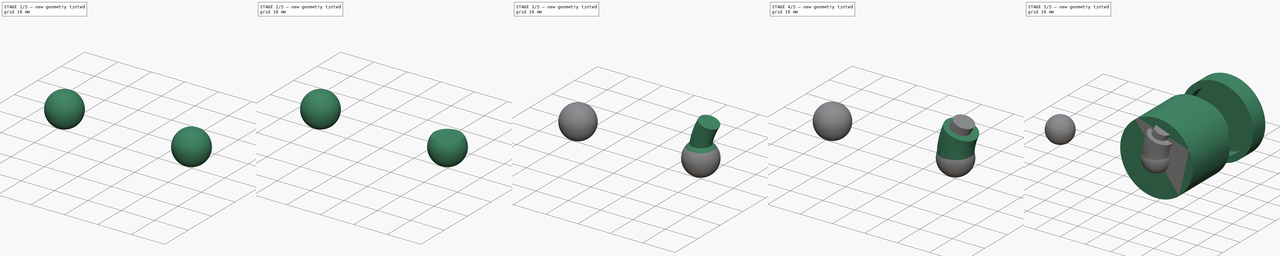
[diagram: build sequence overview — one tinted view per stage of 5, left to right]
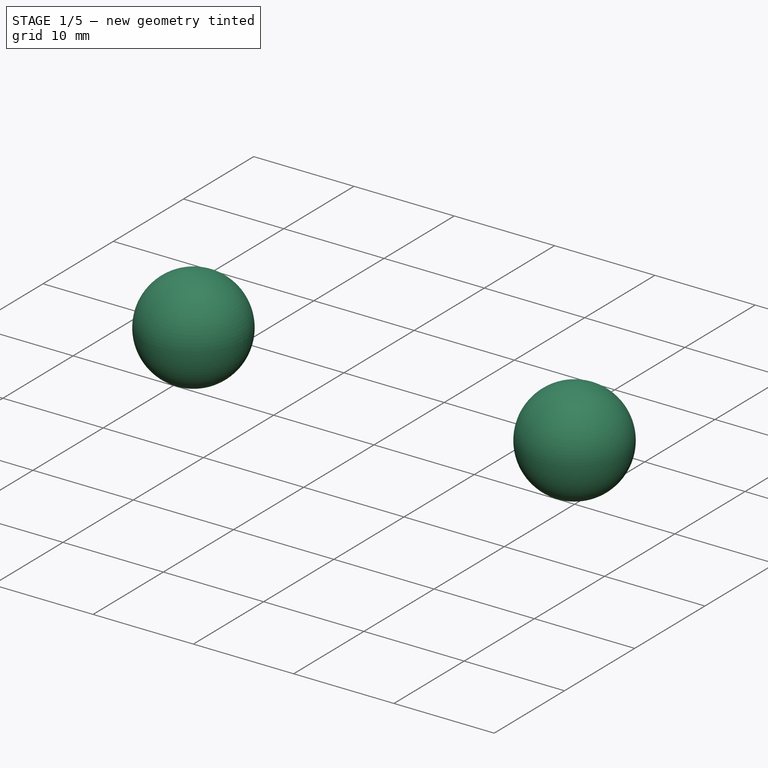
[diagram: stage 1 of 5 — iso view after this stage's code; geometry added in this stage tinted green]
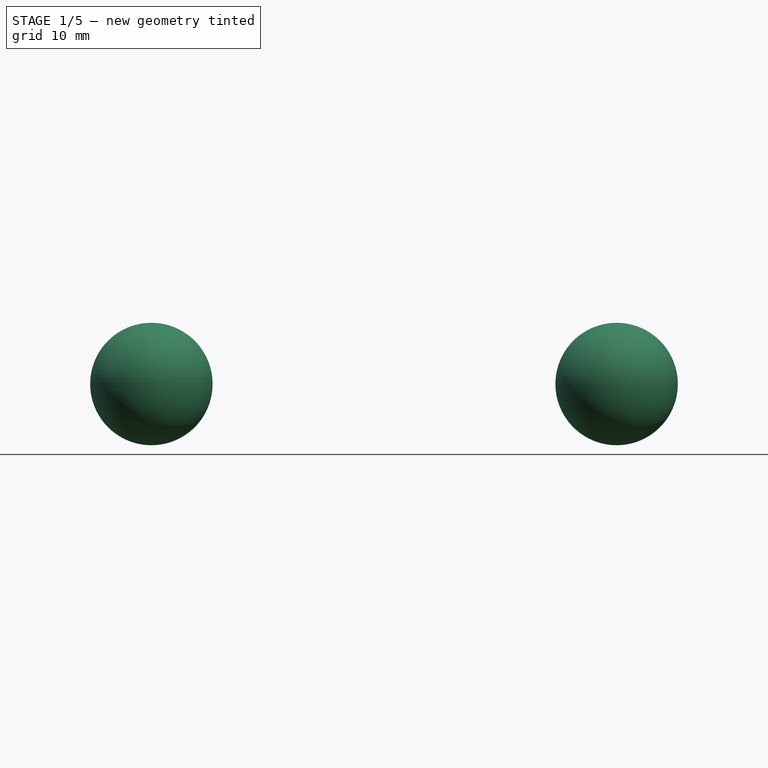
[diagram: stage 1 of 5 — front view after this stage's code; geometry added in this stage tinted green]
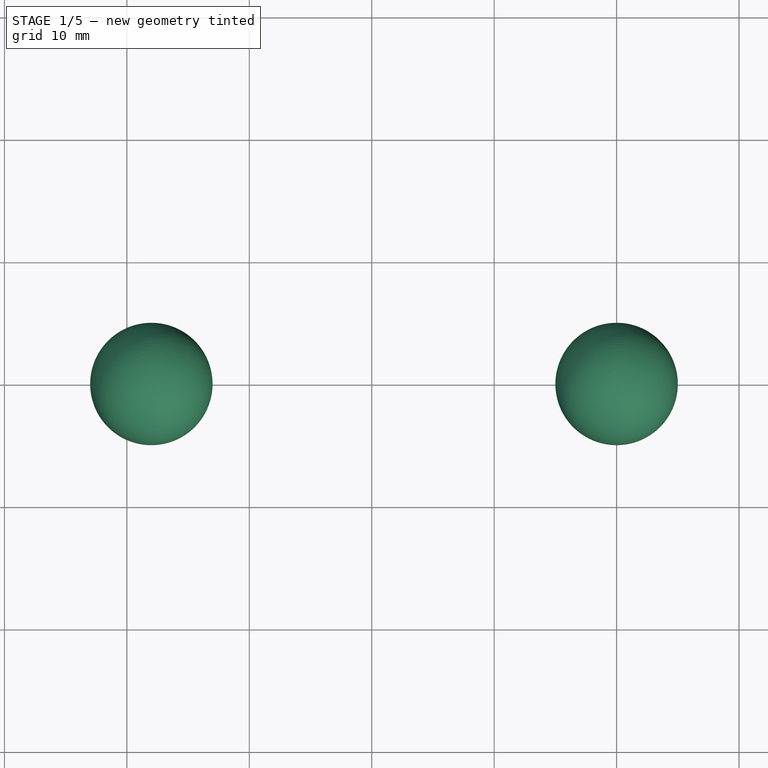
[diagram: stage 1 of 5 — top view after this stage's code; geometry added in this stage tinted green]
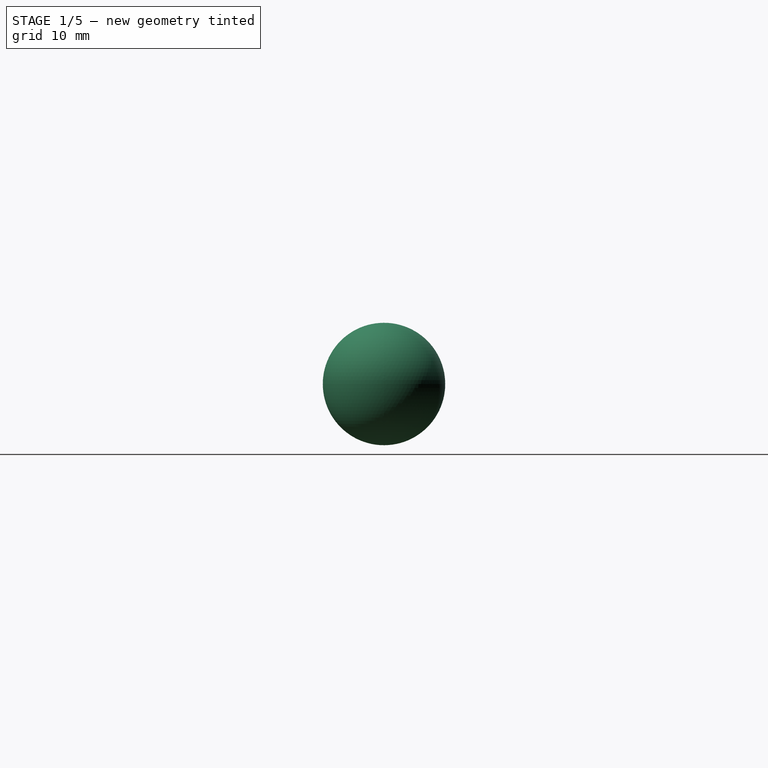
[diagram: stage 1 of 5 — right view after this stage's code; geometry added in this stage tinted green]
FCSTD DOCUMENT  (FreeCAD 0.21RUnknown)
Label: part40-compund_objects
License: All rights reserved
LicenseURL: http://en.wikipedia.org/wiki/All_rights_reserved
objects: Part::FeaturePython×27, Part::Plane×6, Part::Revolution×5, App::DocumentObjectGroup×4, Sketcher::SketchObject×3, Part::Sphere×3, Part::Compound×2, Part::Offset2D×1
note: 47 computed .brp shape members not serialized (recipe doc carries the construction recipe); baked Part::Feature solids carry a one-line shape summary decoded from their .brp

FEATURE [Part::Sphere] Sphere001
  Angle1 = -90
  Angle2 = 90
  Angle3 = 360
  AttacherType = Attacher::AttachEngine3D
  Radius = 5
FEATURE [Part::Plane] Plane
  AttacherType = Attacher::AttachEngine3D
  Length = 20
  Placement = pos=(-9,-9,3) rot=(0,0,1;0rad)
  Width = 20
FEATURE [Part::Plane] Plane001
  AttacherType = Attacher::AttachEngine3D
  Length = 20
  Placement = pos=(-9,-9,-3) rot=(0,0,1;0rad)
  Width = 20
FEATURE [Part::Plane] Plane002
  AttacherType = Attacher::AttachEngine3D
  Length = 20
  Placement = pos=(-9,-9,0) rot=(0,0,1;0rad)
  Width = 20
FEATURE [Part::Compound] Compound
  Links = -> [Plane,Plane001,Plane002]
FEATURE [Part::Plane] Plane003
  AttacherType = Attacher::AttachEngine3D
  Length = 20
  Placement = pos=(-9,-9,3) rot=(0,0,1;0rad)
  Width = 20
FEATURE [Part::Plane] Plane004
  AttacherType = Attacher::AttachEngine3D
  Length = 20
  Placement = pos=(-9,-9,-3) rot=(0,0,1;0rad)
  Width = 20
FEATURE [Part::Plane] Plane005
  AttacherType = Attacher::AttachEngine3D
  Length = 20
  Placement = pos=(-9,-9,0) rot=(0,0,1;0rad)
  Width = 20
FEATURE [Part::Compound] Compound001
  Links = -> [Plane003,Plane004,Plane005]
  Placement = pos=(-39,0,0) rot=(0,0,1;0rad)
FEATURE [Part::Sphere] Sphere002
  Angle1 = -90
  Angle2 = 90
  Angle3 = 360
  AttacherType = Attacher::AttachEngine3D
  Placement = pos=(-38,0,0) rot=(0,0,1;0rad)
  Radius = 5
FEATURE [Part::FeaturePython] Slice  # WARN: FeaturePython — macro-defined, semantics opaque (R4)
  Base = -> Sphere001
  Mode = 1
  Tolerance = 0
  Tools = -> [Compound]
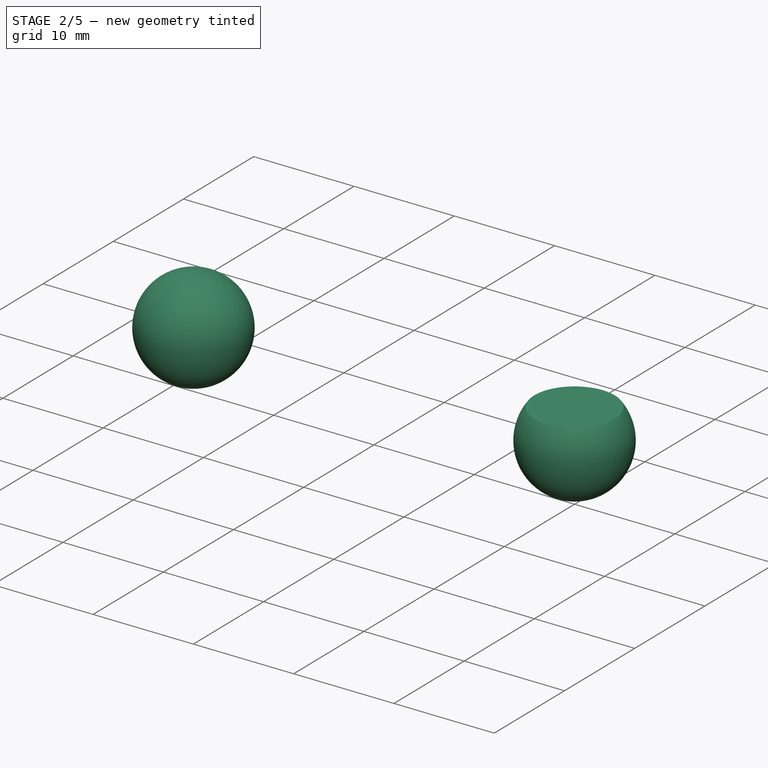
[diagram: stage 2 of 5 — iso view after this stage's code; geometry added in this stage tinted green]
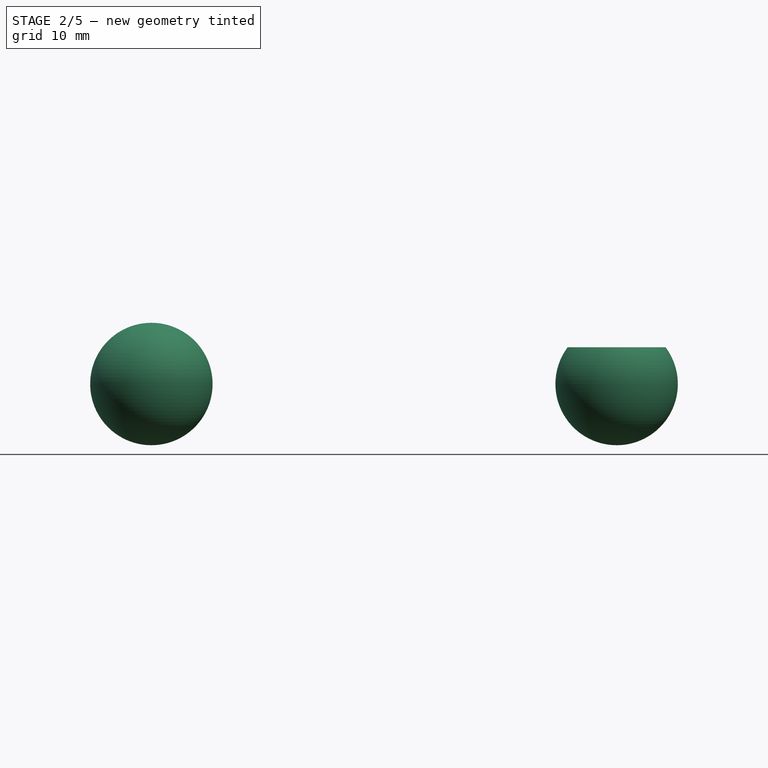
[diagram: stage 2 of 5 — front view after this stage's code; geometry added in this stage tinted green]
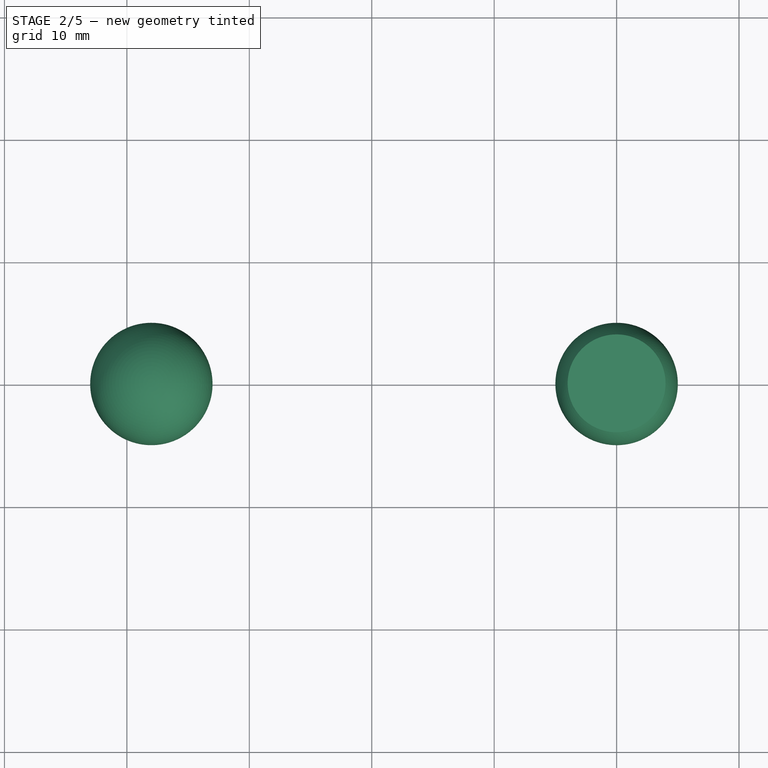
[diagram: stage 2 of 5 — top view after this stage's code; geometry added in this stage tinted green]
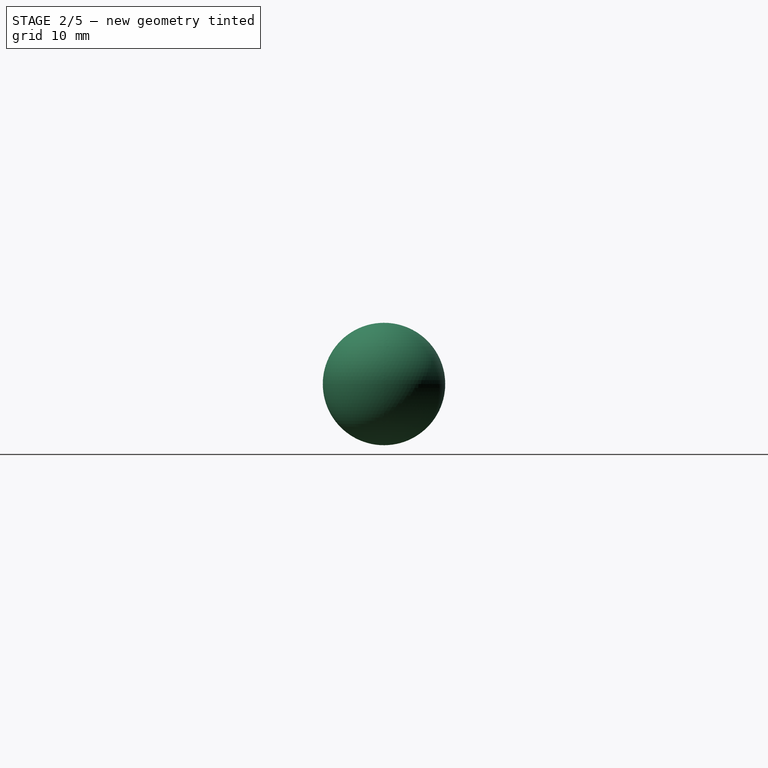
[diagram: stage 2 of 5 — right view after this stage's code; geometry added in this stage tinted green]
FEATURE [Part::FeaturePython] Slice_child1  label="Slice.1"  # WARN: FeaturePython — macro-defined, semantics opaque (R4)
  Base = -> Slice
  FilterType = 1
  Invert = false
  OverrideMaxVal = 0
  WindowFrom = 80
  WindowTo = 100
  items = 1
FEATURE [Part::FeaturePython] Slice_child2  label="Slice.2"  # WARN: FeaturePython — macro-defined, semantics opaque (R4)
  Base = -> Slice
  FilterType = 1
  Invert = false
  OverrideMaxVal = 0
  WindowFrom = 80
  WindowTo = 100
  items = 2
FEATURE [Part::FeaturePython] Slice_child3  label="Slice.3"  # WARN: FeaturePython — macro-defined, semantics opaque (R4)
  Base = -> Slice
  FilterType = 1
  Invert = false
  OverrideMaxVal = 0
  WindowFrom = 80
  WindowTo = 100
  items = 3
FEATURE [App::DocumentObjectGroup] GrExplode_Slice  label="Exploded Slice"
  Group = -> [Slice_child0,Slice_child1,Slice_child2,Slice_child3]
FEATURE [Part::FeaturePython] Slice001  # WARN: FeaturePython — macro-defined, semantics opaque (R4)
  Base = -> Compound001
  Mode = 1
  Tolerance = 0
  Tools = -> [Sphere002]
FEATURE [Part::FeaturePython] Slice001_child0  label="Slice001.0"  # WARN: FeaturePython — macro-defined, semantics opaque (R4)
  Base = -> Slice001
  FilterType = 1
  Invert = false
  OverrideMaxVal = 0
  WindowFrom = 80
  WindowTo = 100
  items = 0
FEATURE [Part::FeaturePython] Slice001_child1  label="Slice001.1"  # WARN: FeaturePython — macro-defined, semantics opaque (R4)
  Base = -> Slice001
  FilterType = 1
  Invert = false
  OverrideMaxVal = 0
  WindowFrom = 80
  WindowTo = 100
  items = 1
FEATURE [Part::FeaturePython] Slice001_child2  label="Slice001.2"  # WARN: FeaturePython — macro-defined, semantics opaque (R4)
  Base = -> Slice001
  FilterType = 1
  Invert = false
  OverrideMaxVal = 0
  WindowFrom = 80
  WindowTo = 100
  items = 2
FEATURE [Part::FeaturePython] Slice001_child3  label="Slice001.3"  # WARN: FeaturePython — macro-defined, semantics opaque (R4)
  Base = -> Slice001
  FilterType = 1
  Invert = false
  OverrideMaxVal = 0
  WindowFrom = 80
  WindowTo = 100
  items = 3
FEATURE [Part::FeaturePython] Slice001_child4  label="Slice001.4"  # WARN: FeaturePython — macro-defined, semantics opaque (R4)
  Base = -> Slice001
  FilterType = 1
  Invert = false
  OverrideMaxVal = 0
  WindowFrom = 80
  WindowTo = 100
  items = 4
FEATURE [Part::FeaturePython] Slice001_child5  label="Slice001.5"  # WARN: FeaturePython — macro-defined, semantics opaque (R4)
  Base = -> Slice001
  FilterType = 1
  Invert = false
  OverrideMaxVal = 0
  WindowFrom = 80
  WindowTo = 100
  items = 5
FEATURE [App::DocumentObjectGroup] GrExplode_Slice001  label="Exploded Slice001"
  Group = -> [Slice001_child0,Slice001_child1,Slice001_child2,Slice001_child3,Slice001_child4,Slice001_child5]
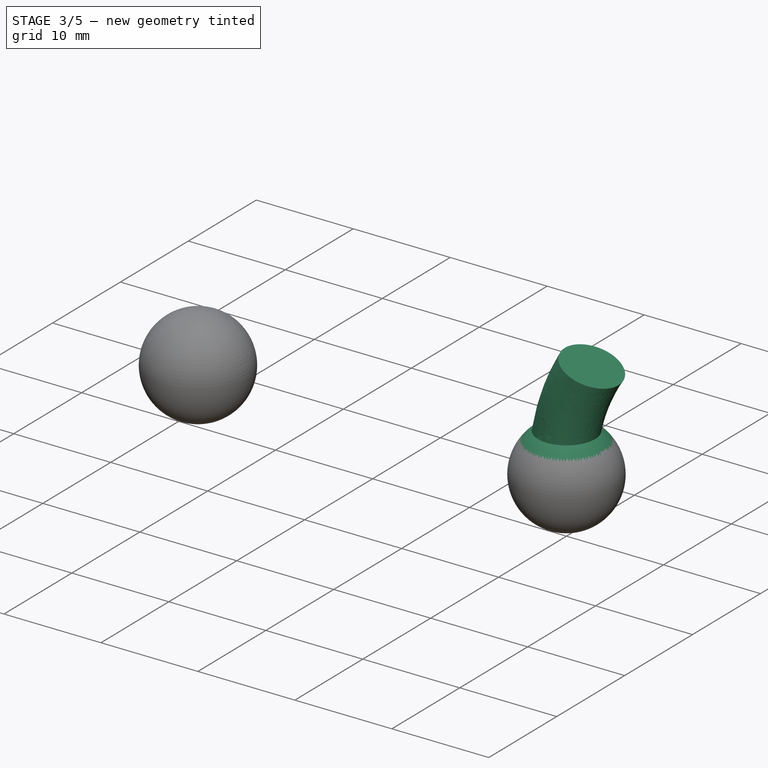
[diagram: stage 3 of 5 — iso view after this stage's code; geometry added in this stage tinted green]
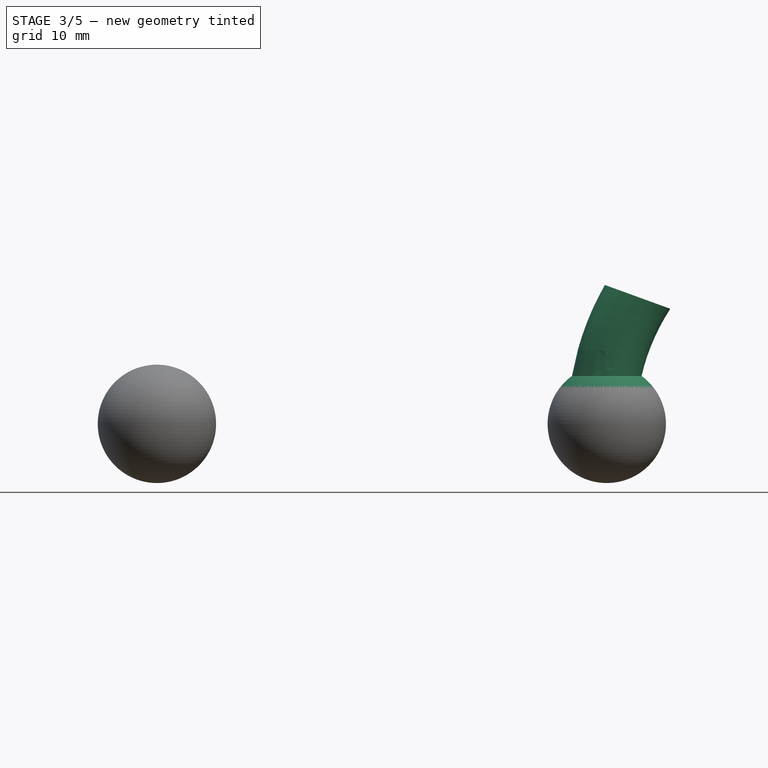
[diagram: stage 3 of 5 — front view after this stage's code; geometry added in this stage tinted green]
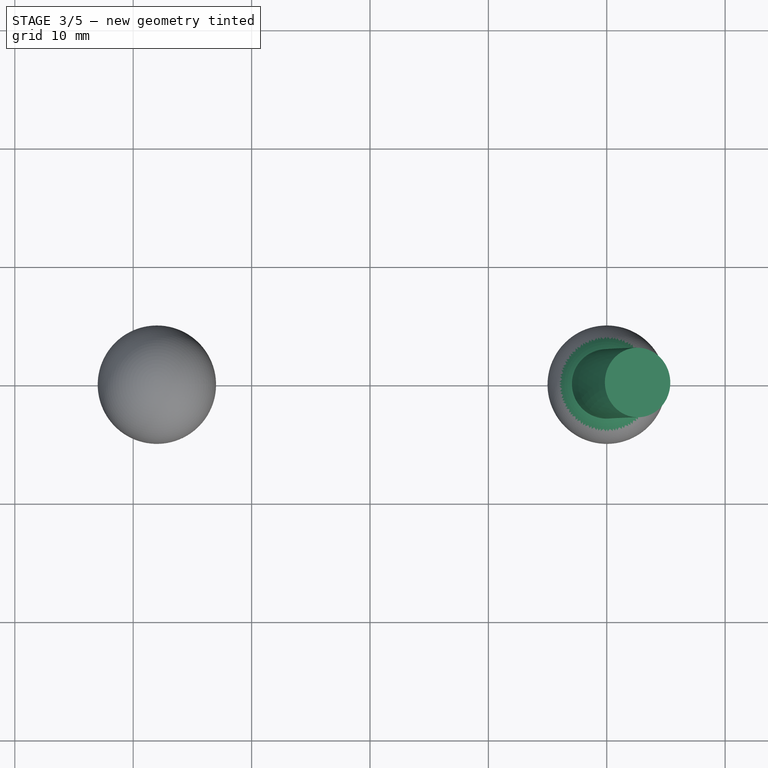
[diagram: stage 3 of 5 — top view after this stage's code; geometry added in this stage tinted green]
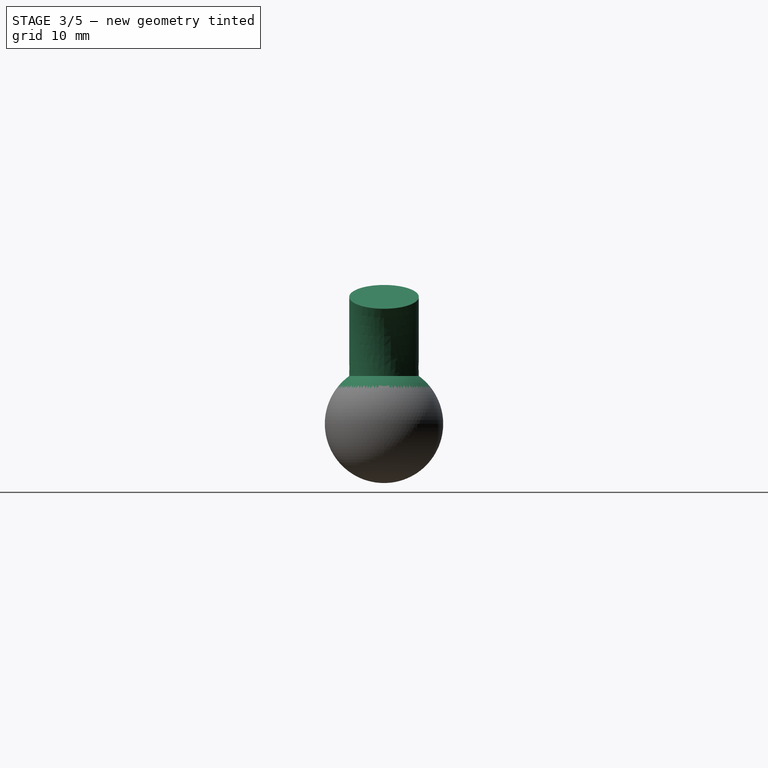
[diagram: stage 3 of 5 — right view after this stage's code; geometry added in this stage tinted green]
FEATURE [App::DocumentObjectGroup] GrExplode_Revolve  label="Exploded Revolve"
  Group = -> [Revolve_child0,Revolve_child1]
FEATURE [Part::Sphere] Sphere
  Angle1 = -90
  Angle2 = 90
  Angle3 = 360
  AttacherType = Attacher::AttachEngine3D
  Radius = 5
FEATURE [Part::Revolution] Revolve004
  Angle = 20
  Axis = (0,1,0)
  AxisLink = -> Sketch002 [Edge1]
  Base = (20.2494,10.6659,0)
  FaceMakerClass = Part::FaceMakerBullseye
  Solid = true
  Source = -> IsoCurve_child10
  Symmetric = false
FEATURE [Part::FeaturePython] Slice_child0  label="Slice.0"  # WARN: FeaturePython — macro-defined, semantics opaque (R4)
  Base = -> Slice
  FilterType = 1
  Invert = false
  OverrideMaxVal = 0
  WindowFrom = 80
  WindowTo = 100
  items = 0
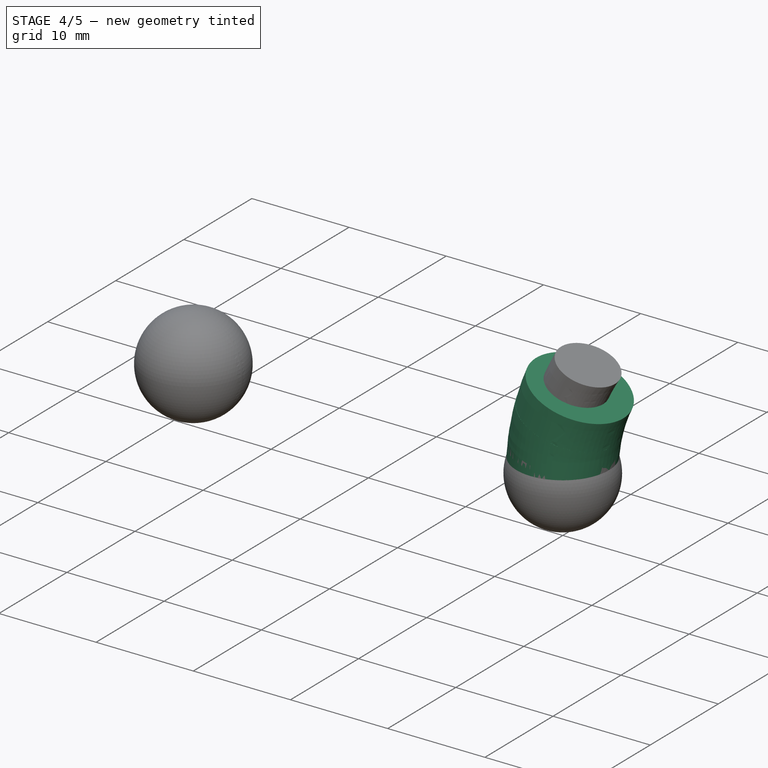
[diagram: stage 4 of 5 — iso view after this stage's code; geometry added in this stage tinted green]
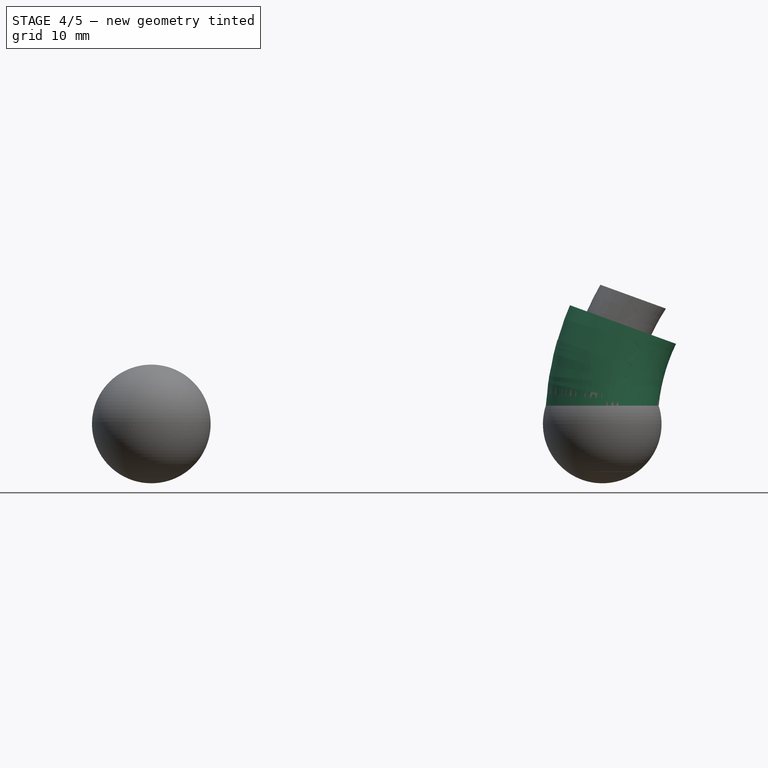
[diagram: stage 4 of 5 — front view after this stage's code; geometry added in this stage tinted green]
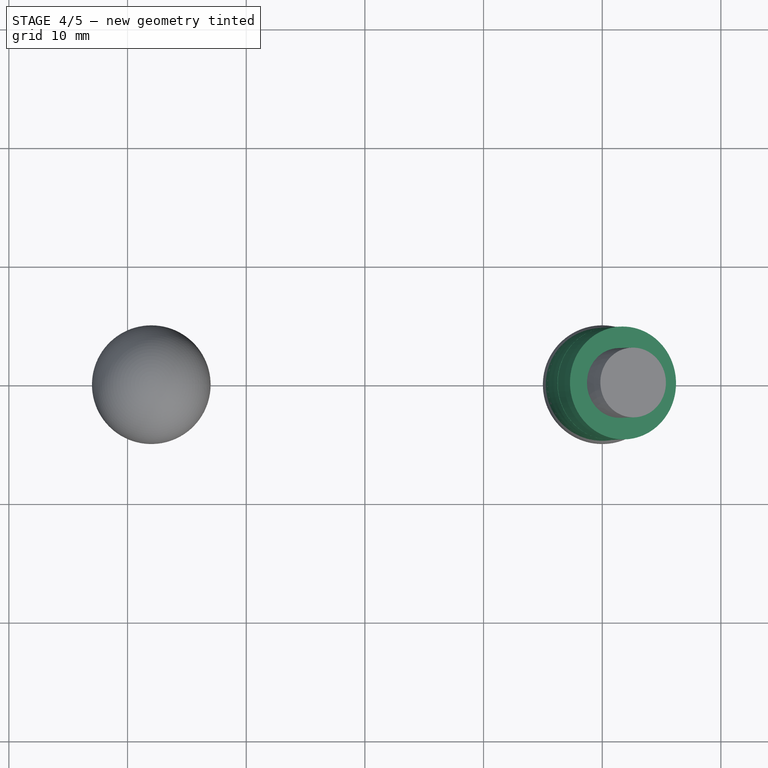
[diagram: stage 4 of 5 — top view after this stage's code; geometry added in this stage tinted green]
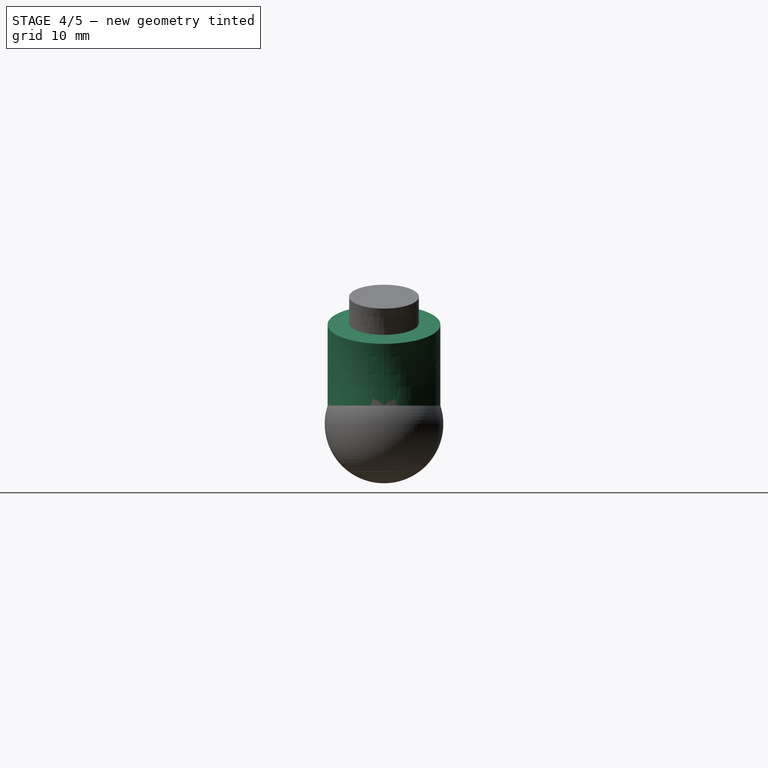
[diagram: stage 4 of 5 — right view after this stage's code; geometry added in this stage tinted green]
FEATURE [Part::FeaturePython] IsoCurve  # WARN: FeaturePython — macro-defined, semantics opaque (R4)
  Face = -> Sphere [Face1]
  Mode = 1
  NumberU = 6
  NumberV = 6
  Orientation = 0
  Parameter = 0
FEATURE [Part::FeaturePython] IsoCurve_child0  label="IsoCurve.0"  # WARN: FeaturePython — macro-defined, semantics opaque (R4)
  Base = -> IsoCurve
  FilterType = 1
  Invert = false
  OverrideMaxVal = 0
  WindowFrom = 80
  WindowTo = 100
  items = 0
FEATURE [Part::FeaturePython] IsoCurve_child1  label="IsoCurve.1"  # WARN: FeaturePython — macro-defined, semantics opaque (R4)
  Base = -> IsoCurve
  FilterType = 1
  Invert = false
  OverrideMaxVal = 0
  WindowFrom = 80
  WindowTo = 100
  items = 1
FEATURE [Part::FeaturePython] IsoCurve_child2  label="IsoCurve.2"  # WARN: FeaturePython — macro-defined, semantics opaque (R4)
  Base = -> IsoCurve
  FilterType = 1
  Invert = false
  OverrideMaxVal = 0
  WindowFrom = 80
  WindowTo = 100
  items = 2
FEATURE [Part::FeaturePython] IsoCurve_child3  label="IsoCurve.3"  # WARN: FeaturePython — macro-defined, semantics opaque (R4)
  Base = -> IsoCurve
  FilterType = 1
  Invert = false
  OverrideMaxVal = 0
  WindowFrom = 80
  WindowTo = 100
  items = 3
FEATURE [Part::FeaturePython] IsoCurve_child4  label="IsoCurve.4"  # WARN: FeaturePython — macro-defined, semantics opaque (R4)
  Base = -> IsoCurve
  FilterType = 1
  Invert = false
  OverrideMaxVal = 0
  WindowFrom = 80
  WindowTo = 100
  items = 4
FEATURE [Part::FeaturePython] IsoCurve_child5  label="IsoCurve.5"  # WARN: FeaturePython — macro-defined, semantics opaque (R4)
  Base = -> IsoCurve
  FilterType = 1
  Invert = false
  OverrideMaxVal = 0
  WindowFrom = 80
  WindowTo = 100
  items = 5
FEATURE [Part::FeaturePython] IsoCurve_child6  label="IsoCurve.6"  # WARN: FeaturePython — macro-defined, semantics opaque (R4)
  Base = -> IsoCurve
  FilterType = 1
  Invert = false
  OverrideMaxVal = 0
  WindowFrom = 80
  WindowTo = 100
  items = 6
FEATURE [Part::FeaturePython] IsoCurve_child7  label="IsoCurve.7"  # WARN: FeaturePython — macro-defined, semantics opaque (R4)
  Base = -> IsoCurve
  FilterType = 1
  Invert = false
  OverrideMaxVal = 0
  WindowFrom = 80
  WindowTo = 100
  items = 7
FEATURE [Part::FeaturePython] IsoCurve_child8  label="IsoCurve.8"  # WARN: FeaturePython — macro-defined, semantics opaque (R4)
  Base = -> IsoCurve
  FilterType = 1
  Invert = false
  OverrideMaxVal = 0
  WindowFrom = 80
  WindowTo = 100
  items = 8
FEATURE [Part::FeaturePython] IsoCurve_child9  label="IsoCurve.9"  # WARN: FeaturePython — macro-defined, semantics opaque (R4)
  Base = -> IsoCurve
  FilterType = 1
  Invert = false
  OverrideMaxVal = 0
  WindowFrom = 80
  WindowTo = 100
  items = 9
FEATURE [Part::FeaturePython] IsoCurve_child10  label="IsoCurve.10"  # WARN: FeaturePython — macro-defined, semantics opaque (R4)
  Base = -> IsoCurve
  FilterType = 1
  Invert = false
  OverrideMaxVal = 0
  WindowFrom = 80
  WindowTo = 100
  items = 10
FEATURE [Part::FeaturePython] IsoCurve_child11  label="IsoCurve.11"  # WARN: FeaturePython — macro-defined, semantics opaque (R4)
  Base = -> IsoCurve
  FilterType = 1
  Invert = false
  OverrideMaxVal = 0
  WindowFrom = 80
  WindowTo = 100
  items = 11
FEATURE [App::DocumentObjectGroup] GrExplode_IsoCurve  label="Exploded IsoCurve"
  Group = -> [IsoCurve_child0,IsoCurve_child1,IsoCurve_child2,IsoCurve_child3,IsoCurve_child4,IsoCurve_child5,IsoCurve_child6,IsoCurve_child7,IsoCurve_child8,IsoCurve_child9,IsoCurve_child10,IsoCurve_child11]
FEATURE [Sketcher::SketchObject] Sketch002
  FullyConstrained = false
  sketch-geometry (1):
    g0: LineSegment StartX=20.2494 StartY=-11.3015 StartZ=0 EndX=20.2494 EndY=10.6659 EndZ=0
  constraints (1):
    c: Vertical(g0)
FEATURE [Part::Revolution] Revolve001
  Angle = 20
  Axis = (0,1,0)
  AxisLink = -> Sketch002 [Edge1]
  Base = (20.2494,10.6659,0)
  FaceMakerClass = Part::FaceMakerBullseye
  Solid = true
  Source = -> IsoCurve_child7
  Symmetric = false
FEATURE [Part::Revolution] Revolve002
  Angle = 20
  Axis = (0,1,0)
  AxisLink = -> Sketch002 [Edge1]
  Base = (20.2494,10.6659,0)
  FaceMakerClass = Part::FaceMakerBullseye
  Solid = true
  Source = -> IsoCurve_child8
  Symmetric = false
FEATURE [Part::Revolution] Revolve003
  Angle = 20
  Axis = (0,1,0)
  AxisLink = -> Sketch002 [Edge1]
  Base = (20.2494,10.6659,0)
  FaceMakerClass = Part::FaceMakerBullseye
  Solid = true
  Source = -> IsoCurve_child9
  Symmetric = false
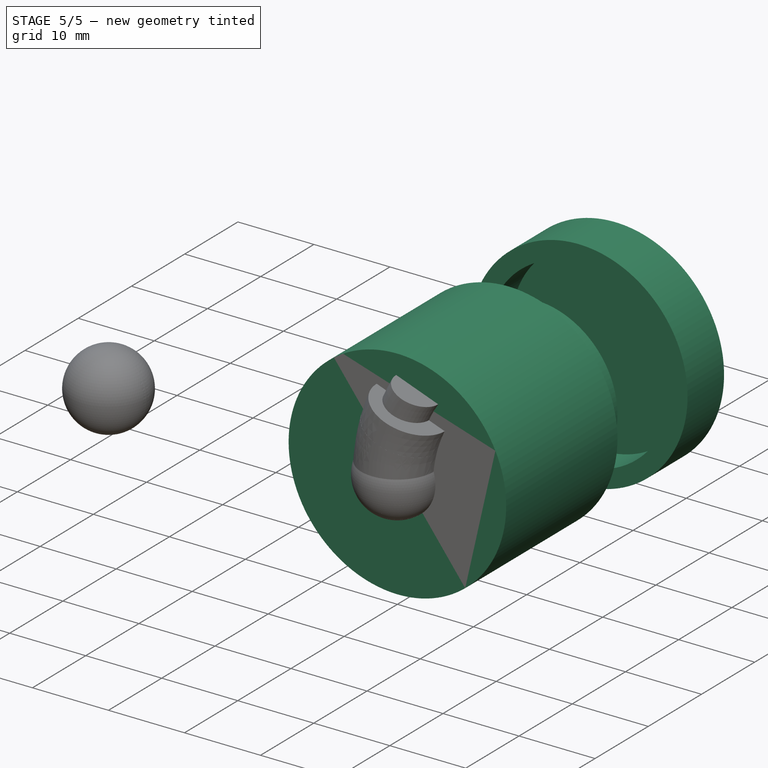
[diagram: stage 5 of 5 — iso view after this stage's code; geometry added in this stage tinted green]
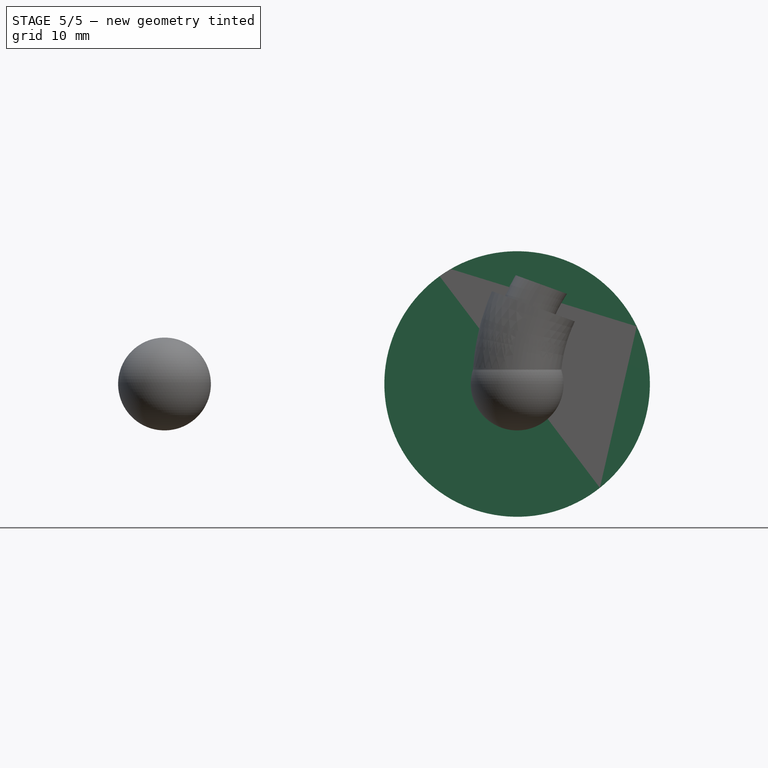
[diagram: stage 5 of 5 — front view after this stage's code; geometry added in this stage tinted green]
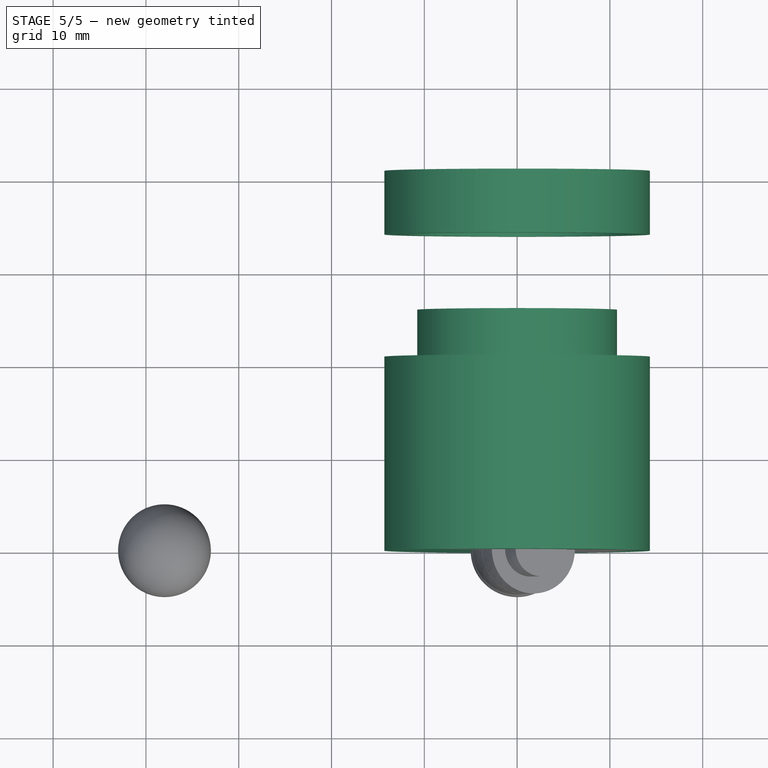
[diagram: stage 5 of 5 — top view after this stage's code; geometry added in this stage tinted green]
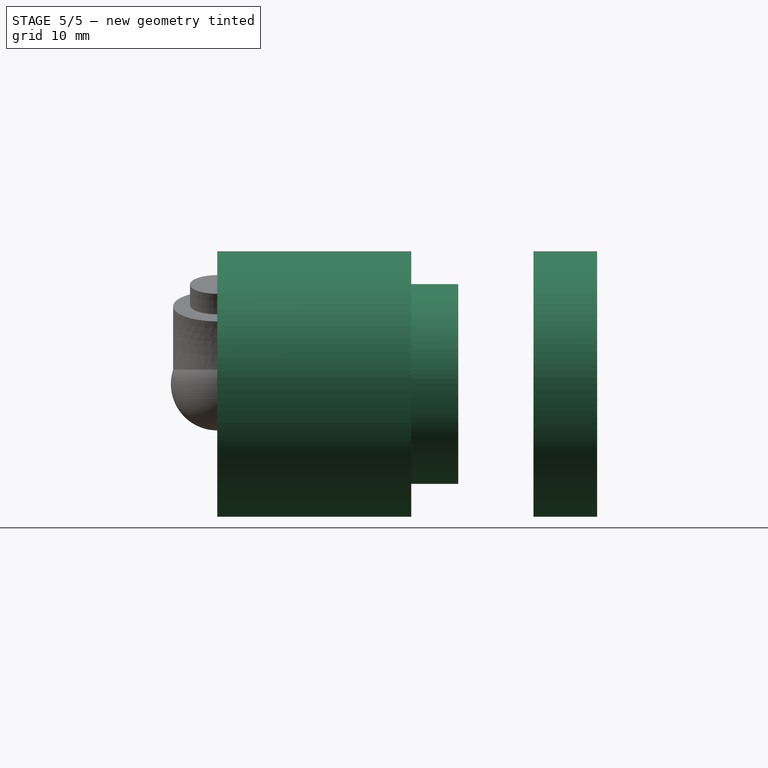
[diagram: stage 5 of 5 — right view after this stage's code; geometry added in this stage tinted green]
FEATURE [Sketcher::SketchObject] Sketch
  FullyConstrained = false
  sketch-geometry (18):
    g0: ArcOfCircle CenterX=-7.6421 CenterY=8.13315 CenterZ=0 NormalX=0 NormalY=0 NormalZ=1 AngleXU=0 Radius=1.29315 StartAngle=1.2834 EndAngle=4.42499
    g1: ArcOfCircle CenterX=-2.14047 CenterY=6.50698 CenterZ=0 NormalX=0 NormalY=0 NormalZ=1 AngleXU=0 Radius=1.29315 StartAngle=4.42499 EndAngle=7.56659
    g2: LineSegment StartX=-8.00865 StartY=6.89304 StartZ=0 EndX=-2.50703 EndY=5.26687 EndZ=0
    g3: LineSegment StartX=-1.77392 StartY=7.74709 StartZ=0 EndX=-7.27555 EndY=9.37326 EndZ=0
    g4: ArcOfCircle CenterX=1.62123 CenterY=1.26955 CenterZ=0 NormalX=0 NormalY=0 NormalZ=1 AngleXU=0 Radius=0.933618 StartAngle=2.11147 EndAngle=5.25307
    g5: ArcOfCircle CenterX=5.68779 CenterY=3.71091 CenterZ=0 NormalX=0 NormalY=0 NormalZ=1 AngleXU=0 Radius=0.933618 StartAngle=5.25307 EndAngle=8.39466
    g6: LineSegment StartX=2.10178 StartY=0.469105 StartZ=0 EndX=6.16834 EndY=2.91046 EndZ=0
    g7: LineSegment StartX=5.20724 StartY=4.51136 StartZ=0 EndX=1.14069 EndY=2.07 EndZ=0
    g8: ArcOfCircle CenterX=-7.59982 CenterY=3.18307 CenterZ=0 NormalX=0 NormalY=0 NormalZ=1 AngleXU=0 Radius=0.623688 StartAngle=1.5708 EndAngle=3.14159
    g9: LineSegment StartX=-7.59982 StartY=3.80676 StartZ=0 EndX=-4.68928 EndY=3.80676 EndZ=0
    g10: ArcOfCircle CenterX=-4.68928 CenterY=3.18307 CenterZ=0 NormalX=0 NormalY=0 NormalZ=1 AngleXU=0 Radius=0.623688 StartAngle=1e-16 EndAngle=1.5708
    g11: LineSegment StartX=-4.06559 StartY=3.18307 StartZ=0 EndX=-4.06559 EndY=1.9357 EndZ=0
    g12: ArcOfCircle CenterX=-4.68928 CenterY=1.9357 CenterZ=0 NormalX=0 NormalY=0 NormalZ=1 AngleXU=0 Radius=0.623688 StartAngle=4.71239 EndAngle=6.28319
    g13: LineSegment StartX=-4.68928 StartY=1.31201 StartZ=0 EndX=-7.59982 EndY=1.31201 EndZ=0
    g14: ArcOfCircle CenterX=-7.59982 CenterY=1.9357 CenterZ=0 NormalX=0 NormalY=0 NormalZ=1 AngleXU=0 Radius=0.623688 StartAngle=3.14159 EndAngle=4.71239
    g15: LineSegment StartX=-8.22351 StartY=1.9357 StartZ=0 EndX=-8.22351 EndY=3.18307 EndZ=0
    g16: GeomPoint X=-8.22351 Y=3.80676 Z=0
    g17: GeomPoint X=-4.06559 Y=1.31201 Z=0
  constraints (29):
    c: Tangent(g0,g2) = -1.5708
    c: Tangent(g2,g1) = -1.5708
    c: Tangent(g1,g3) = -1.5708
    c: Tangent(g3,g0) = -1.5708
    c: Equal(g0,g1)
    c: Tangent(g4,g6) = -1.5708
    c: Tangent(g6,g5) = -1.5708
    c: Tangent(g5,g7) = -1.5708
    c: Tangent(g7,g4) = -1.5708
    c: Equal(g4,g5)
    c: Tangent(g8,g9) = 1.5708
    c: Tangent(g9,g10) = 1.5708
    c: Tangent(g10,g11) = 1.5708
    c: Tangent(g11,g12) = 1.5708
    c: Tangent(g12,g13) = 1.5708
    c: Tangent(g13,g14) = 1.5708
    c: Tangent(g14,g15) = 1.5708
    c: Tangent(g15,g8) = 1.5708
    c: Horizontal(g9)
    c: Horizontal(g13)
    c: Vertical(g11)
    c: Vertical(g15)
    c: Equal(g8,g10)
    c: Equal(g10,g12)
    c: Equal(g12,g14)
    c: PointOnObject(g16,g9)
    c: PointOnObject(g16,g15)
    c: PointOnObject(g17,g11)
    c: PointOnObject(g17,g13)
FEATURE [Sketcher::SketchObject] Sketch001
  FullyConstrained = false
  sketch-geometry (6):
    g0: LineSegment StartX=0 StartY=0 StartZ=0 EndX=-14.3092 EndY=0 EndZ=0
    g1: LineSegment StartX=-14.3092 StartY=0 StartZ=0 EndX=-14.3092 EndY=20.9075 EndZ=0
    g2: LineSegment StartX=-14.3092 StartY=20.9075 StartZ=0 EndX=-10.762 EndY=20.9075 EndZ=0
    g3: LineSegment StartX=-10.762 StartY=20.9075 StartZ=0 EndX=-10.762 EndY=25.9662 EndZ=0
    g4: LineSegment StartX=-14.3092 StartY=22.0796 StartZ=0 EndX=-14.3092 EndY=28.9363 EndZ=0
    g5: LineSegment StartX=-14.3092 StartY=28.9363 StartZ=0 EndX=0 EndY=28.9363 EndZ=0
  constraints (13):
    c: Coincident(g-1,g0)
    c: PointOnObject(g0,g-1)
    c: Coincident(g0,g1)
    c: Vertical(g1)
    c: Coincident(g1,g2)
    c: Coincident(g2,g3)
    c: Vertical(g3)
    c: Horizontal(g2)
    c: Coincident(g4,g5)
    c: PointOnObject(g5,g-2)
    c: Horizontal(g5)
    c: Vertical(g4)
    c: Vertical(g4,g1)
FEATURE [Part::Offset2D] Offset2D
  Fill = true
  Intersection = false
  Join = 0
  Mode = 0
  SelfIntersection = false
  Source = -> Sketch001
  Value = 2.3
FEATURE [Part::Revolution] Revolve
  Angle = 360
  Axis = (0,1,0)
  Base = (0,0,0)
  FaceMakerClass = Part::FaceMakerBullseye
  Solid = false
  Source = -> Offset2D
  Symmetric = false
FEATURE [Part::FeaturePython] Revolve_child0  label="Revolve.0"  # WARN: FeaturePython — macro-defined, semantics opaque (R4)
  Base = -> Revolve
  FilterType = 1
  Invert = false
  OverrideMaxVal = 0
  WindowFrom = 80
  WindowTo = 100
  items = 0
FEATURE [Part::FeaturePython] Revolve_child1  label="Revolve.1"  # WARN: FeaturePython — macro-defined, semantics opaque (R4)
  Base = -> Revolve
  FilterType = 1
  Invert = false
  OverrideMaxVal = 0
  Placement = pos=(0,12,0) rot=(0,0,1;0rad)
  WindowFrom = 80
  WindowTo = 100
  items = 1
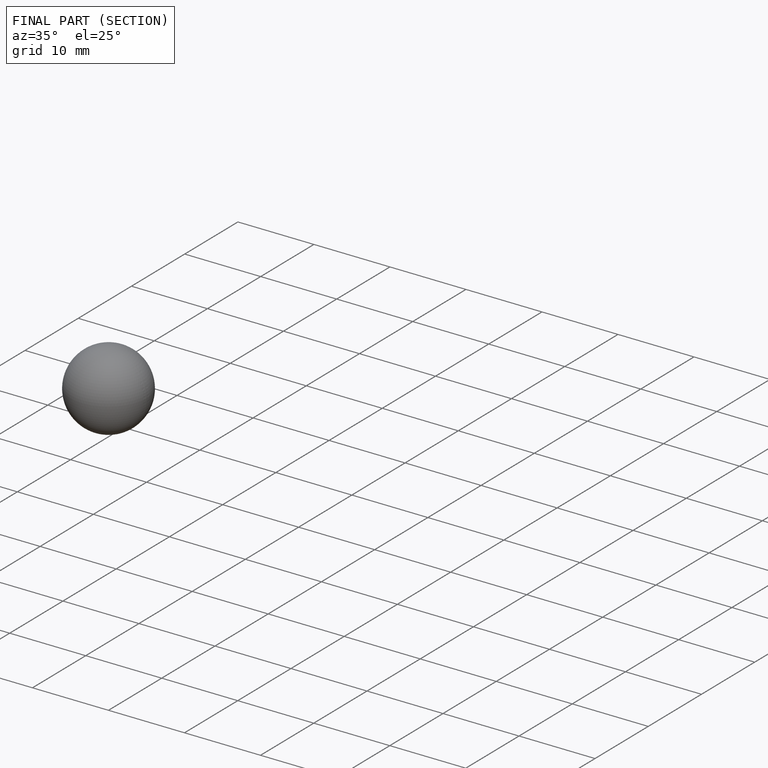
[diagram: finished part — half-section view (interior)]
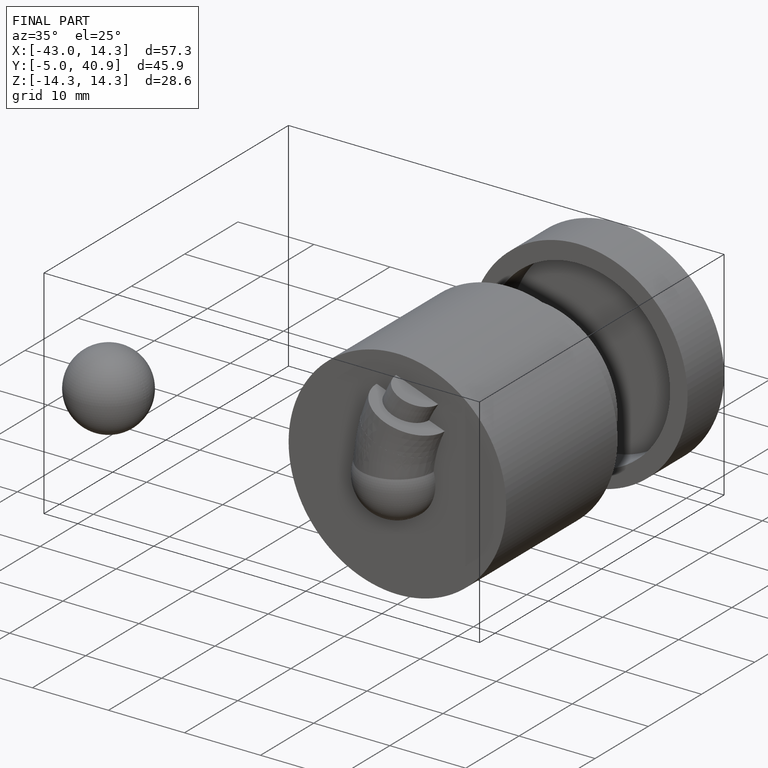
[diagram: finished part — iso view with bounding-box wireframe]
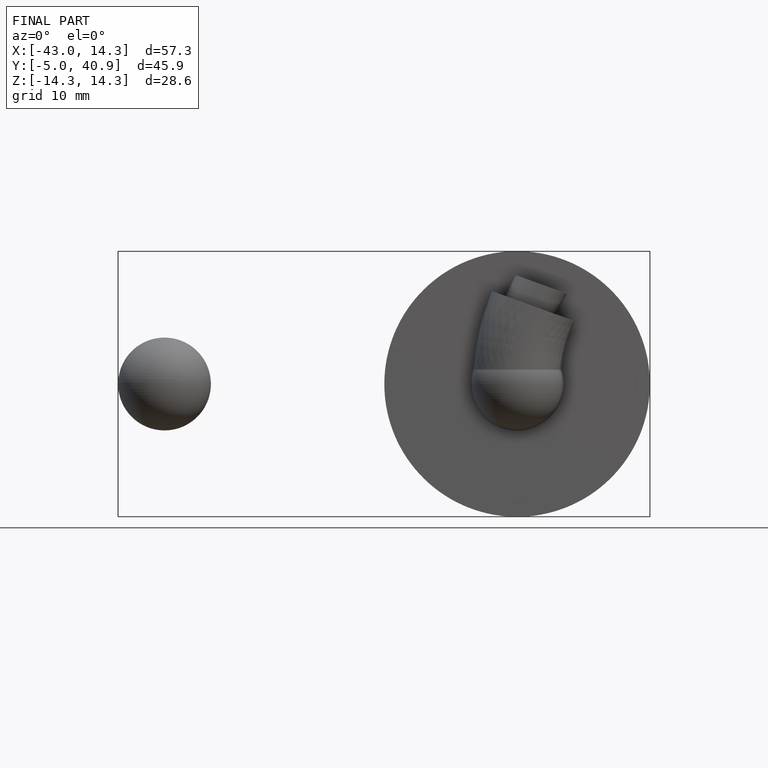
[diagram: finished part — front view with bounding-box wireframe]
